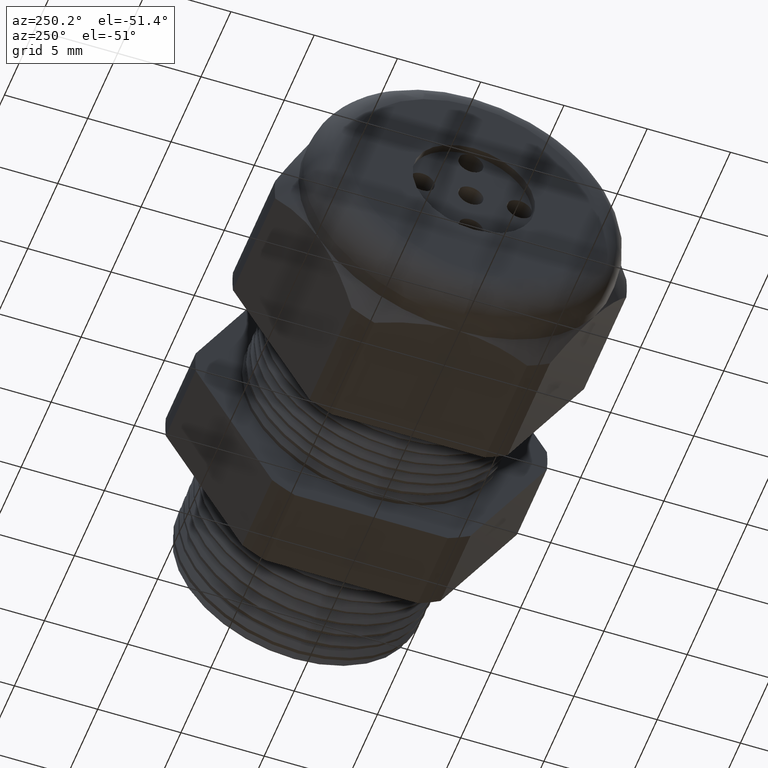
[diagram: clean part render]
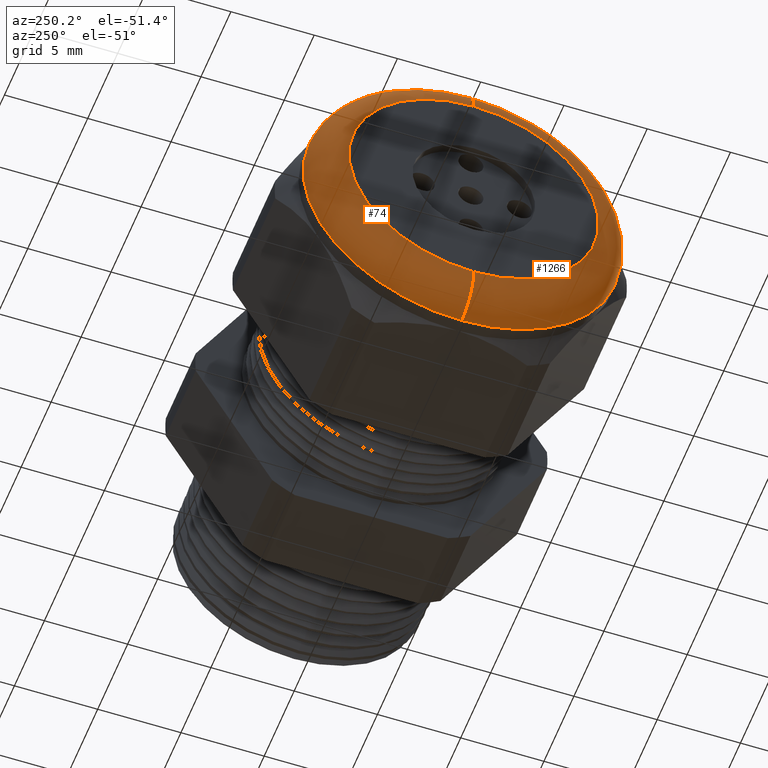
[diagram: same view with one multi-face feature highlighted, each face labeled with its STEP entity id]
A machine part, auxiliary view. The highlighted faces form ONE feature: a constant-radius fillet chain: 2 tangent blend faces with common blend radius 2.032 mm. The faces share edges in the B-rep.
Their STEP definitions:
[1] entity #1266 (Torus):
#701 = EDGE_CURVE ( 'NONE', #1873, #947, #2851, .T. ) ;
#947 = VERTEX_POINT ( 'NONE', #3391 ) ;
#1033 = EDGE_CURVE ( 'NONE', #1294, #947, #3560, .T. ) ;
#1097 = EDGE_CURVE ( 'NONE', #1873, #1864, #3708, .T. ) ;
#1246 = ORIENTED_EDGE ( 'NONE', *, *, #1597, .F. ) ;
#1247 = ORIENTED_EDGE ( 'NONE', *, *, #1097, .F. ) ;
#1248 = ORIENTED_EDGE ( 'NONE', *, *, #701, .T. ) ;
#1249 = ORIENTED_EDGE ( 'NONE', *, *, #1033, .F. ) ;
#1266 = ADVANCED_FACE ( 'NONE', ( #3920 ), #3919, .T. ) ;
#1267 = EDGE_LOOP ( 'NONE', ( #1246, #1247, #1248, #1249 ) ) ;
#1294 = VERTEX_POINT ( 'NONE', #3936 ) ;
#1597 = EDGE_CURVE ( 'NONE', #1864, #1294, #4303, .T. ) ;
#1864 = VERTEX_POINT ( 'NONE', #4298 ) ;
#1873 = VERTEX_POINT ( 'NONE', #4297 ) ;
#2848 = DIRECTION ( 'NONE',  ( 0.0000000000000000000, 0.0000000000000000000, -1.000000000000000000 ) ) ;
#2849 = DIRECTION ( 'NONE',  ( 0.0000000000000000000, -1.000000000000000000, 0.0000000000000000000 ) ) ;
#2850 = AXIS2_PLACEMENT_3D ( 'NONE', #2856, #2849, #2848 ) ;
#2851 = CIRCLE ( 'NONE', #2850, 0.08000000000000000200 ) ;
#2856 = CARTESIAN_POINT ( 'NONE',  ( -1.100000000000000100, 0.0000000000000000000, 0.2950000000000001000 ) ) ;
#3391 = CARTESIAN_POINT ( 'NONE',  ( -1.179999999999999900, 0.0000000000000000000, 0.2950000000000001000 ) ) ;
#3556 = DIRECTION ( 'NONE',  ( 0.0000000000000000000, 0.0000000000000000000, 1.000000000000000000 ) ) ;
#3557 = DIRECTION ( 'NONE',  ( -1.000000000000000000, 0.0000000000000000000, 0.0000000000000000000 ) ) ;
#3558 = CARTESIAN_POINT ( 'NONE',  ( -1.179999999999999900, 0.0000000000000000000, 0.0000000000000000000 ) ) ;
#3559 = AXIS2_PLACEMENT_3D ( 'NONE', #3558, #3557, #3556 ) ;
#3560 = CIRCLE ( 'NONE', #3559, 0.2950000000000001000 ) ;
#3647 = CARTESIAN_POINT ( 'NONE',  ( -1.100000000000000100, 0.0000000000000000000, 0.0000000000000000000 ) ) ;
#3705 = DIRECTION ( 'NONE',  ( 0.0000000000000000000, 0.0000000000000000000, 1.000000000000000000 ) ) ;
#3706 = DIRECTION ( 'NONE',  ( 1.000000000000000000, 0.0000000000000000000, 0.0000000000000000000 ) ) ;
#3707 = AXIS2_PLACEMENT_3D ( 'NONE', #3647, #3706, #3705 ) ;
#3708 = CIRCLE ( 'NONE', #3707, 0.3750000000000001100 ) ;
#3916 = DIRECTION ( 'NONE',  ( 0.0000000000000000000, 0.0000000000000000000, 1.000000000000000000 ) ) ;
#3917 = DIRECTION ( 'NONE',  ( -1.000000000000000000, 0.0000000000000000000, 0.0000000000000000000 ) ) ;
#3918 = AXIS2_PLACEMENT_3D ( 'NONE', #3924, #3917, #3916 ) ;
#3919 = TOROIDAL_SURFACE ( 'NONE', #3918, 0.2950000000000001000, 0.08000000000000000200 ) ;
#3920 = FACE_OUTER_BOUND ( 'NONE', #1267, .T. ) ;
#3924 = CARTESIAN_POINT ( 'NONE',  ( -1.100000000000000100, 0.0000000000000000000, 0.0000000000000000000 ) ) ;
#3936 = CARTESIAN_POINT ( 'NONE',  ( -1.179999999999999900, 4.102566777143634000E-017, -0.2950000000000001000 ) ) ;
#4297 = CARTESIAN_POINT ( 'NONE',  ( -1.100000000000000100, 4.592425496802576100E-017, 0.3750000000000001100 ) ) ;
#4298 = CARTESIAN_POINT ( 'NONE',  ( -1.100000000000000100, 0.0000000000000000000, -0.3750000000000001100 ) ) ;
#4299 = DIRECTION ( 'NONE',  ( 0.0000000000000000000, -1.224646799147353500E-016, 1.000000000000000000 ) ) ;
#4300 = DIRECTION ( 'NONE',  ( 0.0000000000000000000, 1.000000000000000000, 1.224646799147353200E-016 ) ) ;
#4301 = CARTESIAN_POINT ( 'NONE',  ( -1.100000000000000100, 3.612708057484693200E-017, -0.2950000000000001000 ) ) ;
#4302 = AXIS2_PLACEMENT_3D ( 'NONE', #4301, #4300, #4299 ) ;
#4303 = CIRCLE ( 'NONE', #4302, 0.08000000000000000200 ) ;
[2] entity #74 (Torus):
#67 = EDGE_LOOP ( 'NONE', ( #2075, #1591, #940, #699 ) ) ;
#74 = ADVANCED_FACE ( 'NONE', ( #1687 ), #1684, .T. ) ;
#699 = ORIENTED_EDGE ( 'NONE', *, *, #701, .F. ) ;
#701 = EDGE_CURVE ( 'NONE', #1873, #947, #2851, .T. ) ;
#938 = EDGE_CURVE ( 'NONE', #947, #1294, #3348, .T. ) ;
#940 = ORIENTED_EDGE ( 'NONE', *, *, #938, .F. ) ;
#947 = VERTEX_POINT ( 'NONE', #3391 ) ;
#1294 = VERTEX_POINT ( 'NONE', #3936 ) ;
#1591 = ORIENTED_EDGE ( 'NONE', *, *, #1597, .T. ) ;
#1597 = EDGE_CURVE ( 'NONE', #1864, #1294, #4303, .T. ) ;
#1681 = DIRECTION ( 'NONE',  ( 0.0000000000000000000, 0.0000000000000000000, 1.000000000000000000 ) ) ;
#1682 = DIRECTION ( 'NONE',  ( -1.000000000000000000, 0.0000000000000000000, 0.0000000000000000000 ) ) ;
#1683 = AXIS2_PLACEMENT_3D ( 'NONE', #1686, #1682, #1681 ) ;
#1684 = TOROIDAL_SURFACE ( 'NONE', #1683, 0.2950000000000001000, 0.08000000000000000200 ) ;
#1686 = CARTESIAN_POINT ( 'NONE',  ( -1.100000000000000100, 0.0000000000000000000, 0.0000000000000000000 ) ) ;
#1687 = FACE_OUTER_BOUND ( 'NONE', #67, .T. ) ;
#1864 = VERTEX_POINT ( 'NONE', #4298 ) ;
#1873 = VERTEX_POINT ( 'NONE', #4297 ) ;
#2075 = ORIENTED_EDGE ( 'NONE', *, *, #2135, .F. ) ;
#2135 = EDGE_CURVE ( 'NONE', #1864, #1873, #4294, .T. ) ;
#2848 = DIRECTION ( 'NONE',  ( 0.0000000000000000000, 0.0000000000000000000, -1.000000000000000000 ) ) ;
#2849 = DIRECTION ( 'NONE',  ( 0.0000000000000000000, -1.000000000000000000, 0.0000000000000000000 ) ) ;
#2850 = AXIS2_PLACEMENT_3D ( 'NONE', #2856, #2849, #2848 ) ;
#2851 = CIRCLE ( 'NONE', #2850, 0.08000000000000000200 ) ;
#2856 = CARTESIAN_POINT ( 'NONE',  ( -1.100000000000000100, 0.0000000000000000000, 0.2950000000000001000 ) ) ;
#3344 = DIRECTION ( 'NONE',  ( 0.0000000000000000000, 0.0000000000000000000, 1.000000000000000000 ) ) ;
#3345 = DIRECTION ( 'NONE',  ( -1.000000000000000000, 0.0000000000000000000, 0.0000000000000000000 ) ) ;
#3346 = CARTESIAN_POINT ( 'NONE',  ( -1.179999999999999900, 0.0000000000000000000, 0.0000000000000000000 ) ) ;
#3347 = AXIS2_PLACEMENT_3D ( 'NONE', #3346, #3345, #3344 ) ;
#3348 = CIRCLE ( 'NONE', #3347, 0.2950000000000001000 ) ;
#3391 = CARTESIAN_POINT ( 'NONE',  ( -1.179999999999999900, 0.0000000000000000000, 0.2950000000000001000 ) ) ;
#3936 = CARTESIAN_POINT ( 'NONE',  ( -1.179999999999999900, 4.102566777143634000E-017, -0.2950000000000001000 ) ) ;
#4290 = DIRECTION ( 'NONE',  ( 0.0000000000000000000, 0.0000000000000000000, 1.000000000000000000 ) ) ;
#4291 = DIRECTION ( 'NONE',  ( 1.000000000000000000, 0.0000000000000000000, 0.0000000000000000000 ) ) ;
#4292 = CARTESIAN_POINT ( 'NONE',  ( -1.100000000000000100, 0.0000000000000000000, 0.0000000000000000000 ) ) ;
#4293 = AXIS2_PLACEMENT_3D ( 'NONE', #4292, #4291, #4290 ) ;
#4294 = CIRCLE ( 'NONE', #4293, 0.3750000000000001100 ) ;
#4297 = CARTESIAN_POINT ( 'NONE',  ( -1.100000000000000100, 4.592425496802576100E-017, 0.3750000000000001100 ) ) ;
#4298 = CARTESIAN_POINT ( 'NONE',  ( -1.100000000000000100, 0.0000000000000000000, -0.3750000000000001100 ) ) ;
#4299 = DIRECTION ( 'NONE',  ( 0.0000000000000000000, -1.224646799147353500E-016, 1.000000000000000000 ) ) ;
#4300 = DIRECTION ( 'NONE',  ( 0.0000000000000000000, 1.000000000000000000, 1.224646799147353200E-016 ) ) ;
#4301 = CARTESIAN_POINT ( 'NONE',  ( -1.100000000000000100, 3.612708057484693200E-017, -0.2950000000000001000 ) ) ;
#4302 = AXIS2_PLACEMENT_3D ( 'NONE', #4301, #4300, #4299 ) ;
#4303 = CIRCLE ( 'NONE', #4302, 0.08000000000000000200 ) ;